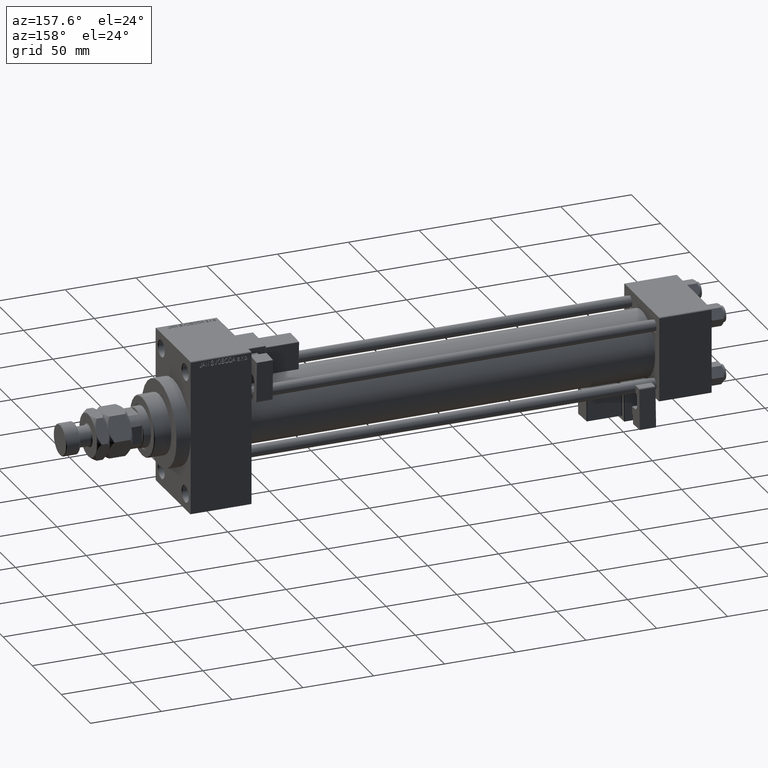
[diagram: clean part render]
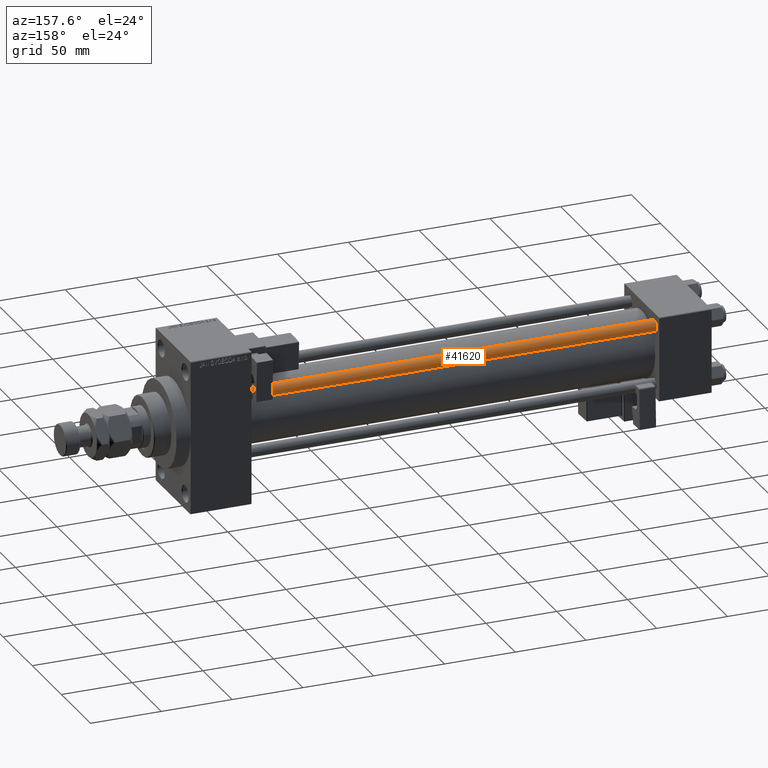
[diagram: same view with one face highlighted and labeled with its STEP entity id]
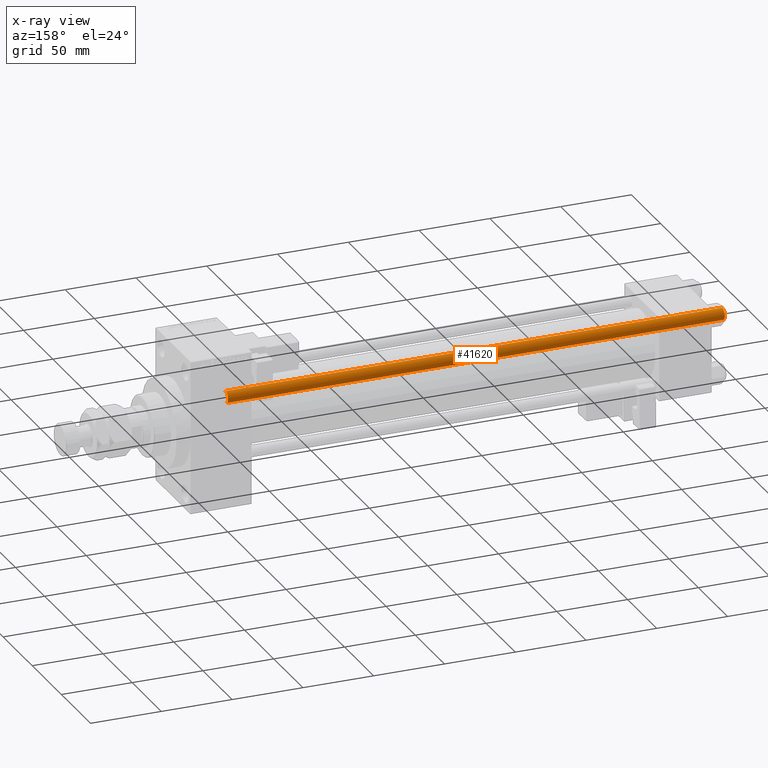
[diagram: x-ray of the same camera — body ghosted, the highlighted face saturated]
A machine part, auxiliary view. The second image highlights one B-rep face of the part: STEP entity #41620.
The next image is the same camera in x-ray: the body ghosted, the highlighted face saturated — about 0% of this face is hidden behind the body in this view.
In plain terms, the highlighted cylindrical surface (edge-blend (fillet) strip) has radius 4 mm, axis along (-1, -0, 0).
Its self-contained STEP definition (entity closure, byte-faithful):
#4104 = ORIENTED_EDGE ( 'NONE', *, *, #51784, .T. ) ;
#4746 = EDGE_CURVE ( 'NONE', #15581, #48544, #20816, .T. ) ;
#6081 = DIRECTION ( 'NONE',  ( 1.000000000000000000, 0.000000000000000000, 0.000000000000000000 ) ) ;
#6873 = LINE ( 'NONE', #40497, #33510 ) ;
#7937 = FACE_OUTER_BOUND ( 'NONE', #29789, .T. ) ;
#9064 = AXIS2_PLACEMENT_3D ( 'NONE', #53093, #45053, #50047 ) ;
#10036 = ORIENTED_EDGE ( 'NONE', *, *, #4746, .T. ) ;
#12297 = DIRECTION ( 'NONE',  ( -0.000000000000000000, -0.000000000000000000, -1.000000000000000000 ) ) ;
#12649 = CARTESIAN_POINT ( 'NONE',  ( 4.000000000000000000, 4.898587196589412829E-16, 351.5000000000000000 ) ) ;
#13788 = ORIENTED_EDGE ( 'NONE', *, *, #40136, .T. ) ;
#15581 = VERTEX_POINT ( 'NONE', #26667 ) ;
#18743 = EDGE_CURVE ( 'NONE', #28867, #48544, #6873, .T. ) ;
#20023 = DIRECTION ( 'NONE',  ( -0.000000000000000000, -0.000000000000000000, -1.000000000000000000 ) ) ;
#20816 = CIRCLE ( 'NONE', #34591, 4.000000000000000000 ) ;
#21685 = LINE ( 'NONE', #45894, #26207 ) ;
#24000 = CIRCLE ( 'NONE', #44596, 4.000000000000000000 ) ;
#26145 = VERTEX_POINT ( 'NONE', #12649 ) ;
#26207 = VECTOR ( 'NONE', #12297, 1000.000000000000000 ) ;
#26667 = CARTESIAN_POINT ( 'NONE',  ( 4.000000000000000000, 4.898587196589412829E-16, 0.5000000000000004441 ) ) ;
#27049 = DIRECTION ( 'NONE',  ( 0.000000000000000000, 0.000000000000000000, -1.000000000000000000 ) ) ;
#28867 = VERTEX_POINT ( 'NONE', #46174 ) ;
#29789 = EDGE_LOOP ( 'NONE', ( #4104, #13788, #10036, #50172 ) ) ;
#31637 = CARTESIAN_POINT ( 'NONE',  ( 0.000000000000000000, 0.000000000000000000, 0.5000000000000004441 ) ) ;
#33510 = VECTOR ( 'NONE', #20023, 1000.000000000000000 ) ;
#34591 = AXIS2_PLACEMENT_3D ( 'NONE', #31637, #40246, #44283 ) ;
#36718 = CYLINDRICAL_SURFACE ( 'NONE', #9064, 4.000000000000000000 ) ;
#40136 = EDGE_CURVE ( 'NONE', #26145, #15581, #21685, .T. ) ;
#40246 = DIRECTION ( 'NONE',  ( -0.000000000000000000, -0.000000000000000000, 1.000000000000000000 ) ) ;
#40497 = CARTESIAN_POINT ( 'NONE',  ( -4.000000000000000000, 0.000000000000000000, 352.0000000000000000 ) ) ;
#41620 = ADVANCED_FACE ( 'NONE', ( #7937 ), #36718, .T. ) ;
#44283 = DIRECTION ( 'NONE',  ( 1.000000000000000000, 0.000000000000000000, 0.000000000000000000 ) ) ;
#44596 = AXIS2_PLACEMENT_3D ( 'NONE', #47485, #27049, #6081 ) ;
#45053 = DIRECTION ( 'NONE',  ( -0.000000000000000000, -0.000000000000000000, -1.000000000000000000 ) ) ;
#45894 = CARTESIAN_POINT ( 'NONE',  ( 4.000000000000000000, 4.898587196589412829E-16, 352.0000000000000000 ) ) ;
#46174 = CARTESIAN_POINT ( 'NONE',  ( -4.000000000000000000, 0.000000000000000000, 351.5000000000000000 ) ) ;
#47485 = CARTESIAN_POINT ( 'NONE',  ( 0.000000000000000000, 0.000000000000000000, 351.5000000000000000 ) ) ;
#48544 = VERTEX_POINT ( 'NONE', #51511 ) ;
#50047 = DIRECTION ( 'NONE',  ( -1.000000000000000000, 0.000000000000000000, 0.000000000000000000 ) ) ;
#50172 = ORIENTED_EDGE ( 'NONE', *, *, #18743, .F. ) ;
#51511 = CARTESIAN_POINT ( 'NONE',  ( -4.000000000000000000, 0.000000000000000000, 0.5000000000000004441 ) ) ;
#51784 = EDGE_CURVE ( 'NONE', #28867, #26145, #24000, .T. ) ;
#53093 = CARTESIAN_POINT ( 'NONE',  ( 0.000000000000000000, 0.000000000000000000, 352.0000000000000000 ) ) ;